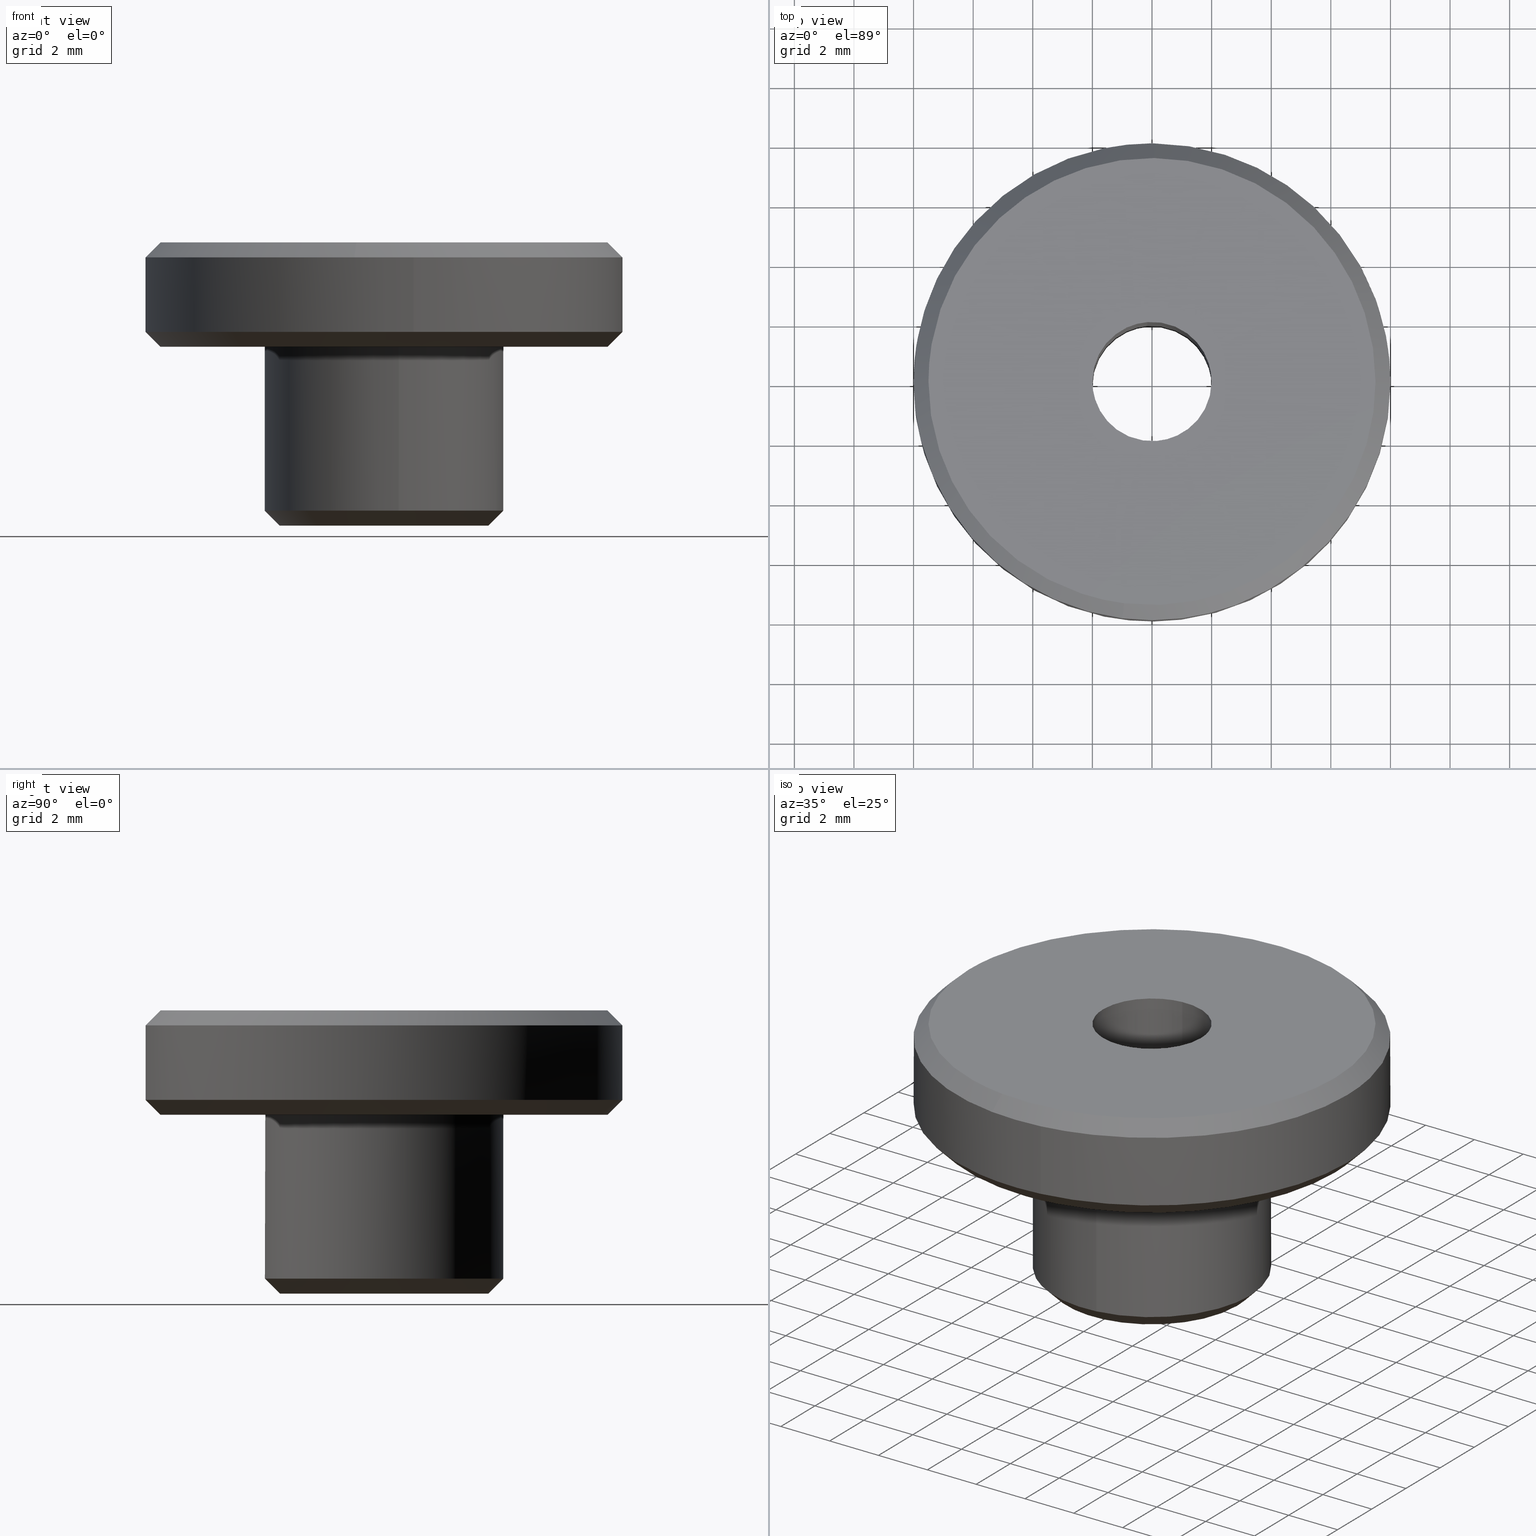
[diagram: canonical four-view strip — front | top / right | iso, engineering-drawing reading convention]
A machine part, canonical four-view strip (front | top / right | iso — engineering-drawing reading convention). The complete STEP part file that produces these views, byte-faithful:
ISO-10303-21;
HEADER;
/****************************************************************
 * Generated by software with PDE/Lib inside                    *
 * PDElib Version 4.4.1-0003, patched  Thursday August 19 11:58 *
 * International Technegroup Inc. (www.iti-oh.com)              *
 ****************************************************************/
FILE_DESCRIPTION((''),'2;1');
FILE_NAME('','2005-07-15T10:44:03',(''),(''),'','CADfix','');
FILE_SCHEMA(('AUTOMOTIVE_DESIGN'));
ENDSEC;
DATA;
#5=APPLICATION_CONTEXT('automotive design');
#6=APPLICATION_PROTOCOL_DEFINITION('Draft International Standard','automotive_design',1998,#5);
#7=PRODUCT_CONTEXT('None',#5,'mechanical');
#8=PRODUCT('knob','','None',(#7));
#9=PRODUCT_RELATED_PRODUCT_CATEGORY('part','description',(#8));
#10=PRODUCT_DEFINITION_FORMATION('None','None',#8);
#11=PRODUCT_DEFINITION_CONTEXT('part definition',#5,'design');
#12=PRODUCT_DEFINITION('None','None',#10,#11);
#18=(NAMED_UNIT(*)PLANE_ANGLE_UNIT()SI_UNIT($,.RADIAN.));
#19=DIMENSIONAL_EXPONENTS(0.0,0.0,0.0,0.0,0.0,0.0,0.0);
#20=PLANE_ANGLE_MEASURE_WITH_UNIT(PLANE_ANGLE_MEASURE(0.017453292500000),#18);
#24=(CONVERSION_BASED_UNIT('DEGREE',#20)NAMED_UNIT(#19)PLANE_ANGLE_UNIT());
#28=(NAMED_UNIT(*)SI_UNIT($,.STERADIAN.)SOLID_ANGLE_UNIT());
#32=(LENGTH_UNIT()NAMED_UNIT(*)SI_UNIT(.MILLI.,.METRE.));
#34=UNCERTAINTY_MEASURE_WITH_UNIT(LENGTH_MEASURE(0.001000000000000),#32,'DISTANCE_ACCURACY_VALUE','');
#36=(GEOMETRIC_REPRESENTATION_CONTEXT(3)GLOBAL_UNCERTAINTY_ASSIGNED_CONTEXT((#34))GLOBAL_UNIT_ASSIGNED_CONTEXT((#24,#28,#32))REPRESENTATION_CONTEXT('None','None'));
#37=AXIS2_PLACEMENT_3D('',#38,#39,#40);
#38=CARTESIAN_POINT('',(0.0,0.0,0.0));
#39=DIRECTION('',(0.0,0.0,1.0));
#40=DIRECTION('',(1.0,0.0,0.0));
#41=ADVANCED_BREP_SHAPE_REPRESENTATION('',(#37,#1111),#36);
#42=PRODUCT_DEFINITION_SHAPE('','',#12);
#43=SHAPE_DEFINITION_REPRESENTATION(#42,#41);
#44=CARTESIAN_POINT('',(-0.929408415572725,-7.429593276018661,9.512500000000001));
#45=CARTESIAN_POINT('',(-7.545399568387005,-6.601962795272439,9.512500000000001));
#46=CARTESIAN_POINT('',(-7.487214898942932,0.065339934544074,9.512500000000001));
#47=CARTESIAN_POINT('',(-7.421874964398858,7.552554833486994,9.512500000000001));
#48=CARTESIAN_POINT('',(0.065339934544063,7.487214898942921,9.512500000000001));
#49=CARTESIAN_POINT('',(-0.994614406665293,-7.950843121468951,8.987187499999997));
#50=CARTESIAN_POINT('',(-8.074774220910383,-7.065147246810602,8.987187499999997));
#51=CARTESIAN_POINT('',(-8.012507396652641,0.069924092723064,8.987187499999997));
#52=CARTESIAN_POINT('',(-7.942583303929577,8.082431489375693,8.987187499999997));
#53=CARTESIAN_POINT('',(0.069924092723053,8.012507396652630,8.987187499999997));
#61=(BOUNDED_SURFACE()B_SPLINE_SURFACE(2,1,((#44,#49),(#45,#50),(#46,#51),(#47,#52),(#48,#53)),.UNSPECIFIED.,.F.,.F.,.U.)B_SPLINE_SURFACE_WITH_KNOTS((3,2,3),(2,2),(0.0,12.213977445729810,25.490039886740469),(0.0,1.0),.UNSPECIFIED.)GEOMETRIC_REPRESENTATION_ITEM()RATIONAL_B_SPLINE_SURFACE(((0.956886118190660,0.956886118190660),(0.730538238691624,0.730538238691624),(1.0,1.0),(0.707106781186548,0.707106781186548),(1.0,1.0)))REPRESENTATION_ITEM('')SURFACE());
#62=CARTESIAN_POINT('',(-0.993024016639548,-7.938129710604311,8.999999999999886));
#63=VERTEX_POINT('',#62);
#64=CARTESIAN_POINT('',(-8.000000000000011,0.0,9.0));
#65=VERTEX_POINT('',#64);
#66=CARTESIAN_POINT('',(-0.993024016639548,-7.938129710604311,8.999999999999886));
#67=CARTESIAN_POINT('',(-8.000000000000011,-7.061588801200236,9.0));
#68=CARTESIAN_POINT('',(-8.000000000000011,0.0,9.0));
#76=(BOUNDED_CURVE()B_SPLINE_CURVE(2,(#66,#67,#68),.UNSPECIFIED.,.F.,.U.)B_SPLINE_CURVE_WITH_KNOTS((3,3),(0.771473928970739,1.0),.UNSPECIFIED.)CURVE()GEOMETRIC_REPRESENTATION_ITEM()RATIONAL_B_SPLINE_CURVE((0.954005430274645,0.732265053893792,1.0))REPRESENTATION_ITEM(''));
#77=EDGE_CURVE('',#63,#65,#76,.T.);
#78=ORIENTED_EDGE('',*,*,#77,.F.);
#79=CARTESIAN_POINT('',(-0.930960015612381,-7.441996603691548,9.499999999998270));
#80=VERTEX_POINT('',#79);
#81=CARTESIAN_POINT('',(-0.930960015612381,-7.441996603691548,9.499999999998270));
#82=CARTESIAN_POINT('',(-0.993024016639548,-7.938129710604311,8.999999999999886));
#83=QUASI_UNIFORM_CURVE('',1,(#81,#82),.UNSPECIFIED.,.F.,.U.);
#84=EDGE_CURVE('',#80,#63,#83,.T.);
#85=ORIENTED_EDGE('',*,*,#84,.F.);
#86=CARTESIAN_POINT('',(-7.500000000000010,0.0,9.500000000000000));
#87=VERTEX_POINT('',#86);
#88=CARTESIAN_POINT('',(-7.500000000000010,0.0,9.500000000000000));
#89=CARTESIAN_POINT('',(-7.500000000000008,-6.620239501102615,9.499999999999998));
#90=CARTESIAN_POINT('',(-0.930960015612380,-7.441996603691548,9.499999999998270));
#98=(BOUNDED_CURVE()B_SPLINE_CURVE(2,(#88,#89,#90),.UNSPECIFIED.,.F.,.U.)B_SPLINE_CURVE_WITH_KNOTS((3,3),(0.500000000000000,0.728526071028690),.UNSPECIFIED.)CURVE()GEOMETRIC_REPRESENTATION_ITEM()RATIONAL_B_SPLINE_CURVE((1.0,0.732265053894462,0.954005430273536))REPRESENTATION_ITEM(''));
#99=EDGE_CURVE('',#87,#80,#98,.T.);
#100=ORIENTED_EDGE('',*,*,#99,.F.);
#101=CARTESIAN_POINT('',(0.065449016252098,7.499714422983092,9.499999999998039));
#102=VERTEX_POINT('',#101);
#103=CARTESIAN_POINT('',(0.065449016252098,7.499714422983092,9.499999999998039));
#104=CARTESIAN_POINT('',(0.032725131169539,7.500000000000001,9.500000000000000));
#105=CARTESIAN_POINT('',(-1.065814E-014,7.500000000000000,9.500000000000000));
#106=CARTESIAN_POINT('',(-7.500000000000009,7.500000000000000,9.500000000000000));
#107=CARTESIAN_POINT('',(-7.500000000000010,0.0,9.500000000000000));
#115=(BOUNDED_CURVE()B_SPLINE_CURVE(2,(#103,#104,#105,#106,#107),.UNSPECIFIED.,.F.,.U.)B_SPLINE_CURVE_WITH_KNOTS((3,2,3),(0.248460105664342,0.250000000000000,0.500000000000000),.UNSPECIFIED.)CURVE()GEOMETRIC_REPRESENTATION_ITEM()RATIONAL_B_SPLINE_CURVE((0.996414028098853,0.998195901565586,1.0,0.707106781186547,1.0))REPRESENTATION_ITEM(''));
#116=EDGE_CURVE('',#102,#87,#115,.T.);
#117=ORIENTED_EDGE('',*,*,#116,.F.);
#118=CARTESIAN_POINT('',(0.069812284010404,7.999695384516350,8.999999999996813));
#119=VERTEX_POINT('',#118);
#120=CARTESIAN_POINT('',(0.065449016252098,7.499714422983092,9.499999999998039));
#121=CARTESIAN_POINT('',(0.069812284010404,7.999695384516350,8.999999999996813));
#122=QUASI_UNIFORM_CURVE('',1,(#120,#121),.UNSPECIFIED.,.F.,.U.);
#123=EDGE_CURVE('',#102,#119,#122,.T.);
#124=ORIENTED_EDGE('',*,*,#123,.T.);
#125=CARTESIAN_POINT('',(-0.069807241200332,7.999695428517923,9.000000000000023));
#126=VERTEX_POINT('',#125);
#127=CARTESIAN_POINT('',(-0.069807241200332,7.999695428517923,9.000000000000023));
#128=CARTESIAN_POINT('',(-0.034904285028288,8.0,9.0));
#129=CARTESIAN_POINT('',(-1.065814E-014,8.0,9.0));
#130=CARTESIAN_POINT('',(0.034906806589004,8.0,8.999999999999998));
#131=CARTESIAN_POINT('',(0.069812284010404,7.999695384516350,8.999999999996813));
#139=(BOUNDED_CURVE()B_SPLINE_CURVE(2,(#127,#128,#129,#130,#131),.UNSPECIFIED.,.F.,.U.)B_SPLINE_CURVE_WITH_KNOTS((3,2,3),(0.248460216700562,0.250000000000000,0.251539894336018),.UNSPECIFIED.)CURVE()GEOMETRIC_REPRESENTATION_ITEM()RATIONAL_B_SPLINE_CURVE((0.996414285067891,0.998196031652609,1.0,0.998195901565165,0.996414028098021))REPRESENTATION_ITEM(''));
#140=EDGE_CURVE('',#126,#119,#139,.T.);
#141=ORIENTED_EDGE('',*,*,#140,.F.);
#142=CARTESIAN_POINT('',(-8.000000000000011,0.0,9.0));
#143=CARTESIAN_POINT('',(-8.000000000000011,7.930494684113032,9.0));
#144=CARTESIAN_POINT('',(-0.069807241200332,7.999695428517923,9.000000000000023));
#152=(BOUNDED_CURVE()B_SPLINE_CURVE(2,(#142,#143,#144),.UNSPECIFIED.,.F.,.U.)B_SPLINE_CURVE_WITH_KNOTS((3,3),(0.0,0.248460216700562),.UNSPECIFIED.)CURVE()GEOMETRIC_REPRESENTATION_ITEM()RATIONAL_B_SPLINE_CURVE((1.0,0.708910749533938,0.996414285067891))REPRESENTATION_ITEM(''));
#153=EDGE_CURVE('',#65,#126,#152,.T.);
#154=ORIENTED_EDGE('',*,*,#153,.F.);
#155=EDGE_LOOP('',(#78,#85,#100,#117,#124,#141,#154));
#156=FACE_OUTER_BOUND('',#155,.T.);
#157=ADVANCED_FACE('',(#156),#61,.T.);
#158=CARTESIAN_POINT('',(0.065339934544063,7.487214898942921,9.512500000000001));
#159=CARTESIAN_POINT('',(7.552554833486984,7.421874964398847,9.512500000000001));
#160=CARTESIAN_POINT('',(7.487214898942910,-0.065339934544074,9.512500000000001));
#161=CARTESIAN_POINT('',(7.421874964398836,-7.552554833486994,9.512500000000001));
#162=CARTESIAN_POINT('',(-0.065339934544085,-7.487214898942921,9.512500000000001));
#163=CARTESIAN_POINT('',(-0.499043065199332,-7.483430029061254,9.512500000000001));
#164=CARTESIAN_POINT('',(-0.929408415572725,-7.429593276018661,9.512500000000001));
#165=CARTESIAN_POINT('',(0.069924092723053,8.012507396652630,8.987187499999997));
#166=CARTESIAN_POINT('',(8.082431489375683,7.942583303929566,8.987187499999997));
#167=CARTESIAN_POINT('',(8.012507396652620,-0.069924092723064,8.987187499999997));
#168=CARTESIAN_POINT('',(7.942583303929555,-8.082431489375693,8.987187499999997));
#169=CARTESIAN_POINT('',(-0.069924092723075,-8.012507396652630,8.987187499999997));
#170=CARTESIAN_POINT('',(-0.534055226827051,-8.008456985607730,8.987187499999997));
#171=CARTESIAN_POINT('',(-0.994614406665293,-7.950843121468951,8.987187499999997));
#179=(BOUNDED_SURFACE()B_SPLINE_SURFACE(2,1,((#158,#165),(#159,#166),(#160,#167),(#161,#168),(#162,#169),(#163,#170),(#164,#171)),.UNSPECIFIED.,.F.,.F.,.U.)B_SPLINE_SURFACE_WITH_KNOTS((3,2,2,3),(2,2),(0.0,13.276062441010660,26.552124882021321,27.614209877302180),(0.0,1.0),.UNSPECIFIED.)GEOMETRIC_REPRESENTATION_ITEM()RATIONAL_B_SPLINE_SURFACE(((1.0,1.0),(0.707106781186548,0.707106781186548),(1.0,1.0),(0.707106781186548,0.707106781186548),(1.0,1.0),(0.976568542494924,0.976568542494924),(0.956886118190660,0.956886118190660)))REPRESENTATION_ITEM('')SURFACE());
#180=CARTESIAN_POINT('',(0.993019944666486,-7.938130219987430,8.999999999999979));
#181=VERTEX_POINT('',#180);
#182=CARTESIAN_POINT('',(0.993019944666486,-7.938130219987430,8.999999999999979));
#183=CARTESIAN_POINT('',(0.498437360448333,-8.0,9.0));
#184=CARTESIAN_POINT('',(-1.065814E-014,-8.0,9.0));
#185=CARTESIAN_POINT('',(-0.498439420268864,-8.000000000000002,9.000000000000002));
#186=CARTESIAN_POINT('',(-0.993024016639548,-7.938129710604311,8.999999999999886));
#194=(BOUNDED_CURVE()B_SPLINE_CURVE(2,(#182,#183,#184,#185,#186),.UNSPECIFIED.,.F.,.U.)B_SPLINE_CURVE_WITH_KNOTS((3,2,3),(0.728526157538534,0.750000000000000,0.771473928970739),.UNSPECIFIED.)CURVE()GEOMETRIC_REPRESENTATION_ITEM()RATIONAL_B_SPLINE_CURVE((0.954005598155769,0.974841828644673,1.0,0.974841727292755,0.954005430274645))REPRESENTATION_ITEM(''));
#195=EDGE_CURVE('',#181,#63,#194,.T.);
#196=ORIENTED_EDGE('',*,*,#195,.F.);
#197=CARTESIAN_POINT('',(7.999999999999989,0.0,9.0));
#198=VERTEX_POINT('',#197);
#199=CARTESIAN_POINT('',(7.999999999999989,0.0,9.0));
#200=CARTESIAN_POINT('',(7.999999999999989,-7.061592451773655,8.999999999999998));
#201=CARTESIAN_POINT('',(0.993019944666486,-7.938130219987430,8.999999999999979));
#209=(BOUNDED_CURVE()B_SPLINE_CURVE(2,(#199,#200,#201),.UNSPECIFIED.,.F.,.U.)B_SPLINE_CURVE_WITH_KNOTS((3,3),(0.500000000000000,0.728526157538534),.UNSPECIFIED.)CURVE()GEOMETRIC_REPRESENTATION_ITEM()RATIONAL_B_SPLINE_CURVE((1.0,0.732264952541874,0.954005598155769))REPRESENTATION_ITEM(''));
#210=EDGE_CURVE('',#198,#181,#209,.T.);
#211=ORIENTED_EDGE('',*,*,#210,.F.);
#212=CARTESIAN_POINT('',(0.069812284010404,7.999695384516350,8.999999999996813));
#213=CARTESIAN_POINT('',(7.999999999999990,7.930489684713439,9.0));
#214=CARTESIAN_POINT('',(7.999999999999989,0.0,9.0));
#222=(BOUNDED_CURVE()B_SPLINE_CURVE(2,(#212,#213,#214),.UNSPECIFIED.,.F.,.U.)B_SPLINE_CURVE_WITH_KNOTS((3,3),(0.251539894336017,0.500000000000000),.UNSPECIFIED.)CURVE()GEOMETRIC_REPRESENTATION_ITEM()RATIONAL_B_SPLINE_CURVE((0.996414028098022,0.708910879621383,1.0))REPRESENTATION_ITEM(''));
#223=EDGE_CURVE('',#119,#198,#222,.T.);
#224=ORIENTED_EDGE('',*,*,#223,.F.);
#225=ORIENTED_EDGE('',*,*,#123,.F.);
#226=CARTESIAN_POINT('',(7.499999999999989,0.0,9.500000000000000));
#227=VERTEX_POINT('',#226);
#228=CARTESIAN_POINT('',(7.499999999999989,0.0,9.500000000000000));
#229=CARTESIAN_POINT('',(7.499999999999988,7.434834079434003,9.500000000000000));
#230=CARTESIAN_POINT('',(0.065449016252098,7.499714422983092,9.499999999998039));
#238=(BOUNDED_CURVE()B_SPLINE_CURVE(2,(#228,#229,#230),.UNSPECIFIED.,.F.,.U.)B_SPLINE_CURVE_WITH_KNOTS((3,3),(0.0,0.248460105664342),.UNSPECIFIED.)CURVE()GEOMETRIC_REPRESENTATION_ITEM()RATIONAL_B_SPLINE_CURVE((1.0,0.708910879620962,0.996414028098852))REPRESENTATION_ITEM(''));
#239=EDGE_CURVE('',#227,#102,#238,.T.);
#240=ORIENTED_EDGE('',*,*,#239,.F.);
#241=CARTESIAN_POINT('',(-0.930960015612381,-7.441996603691548,9.499999999998270));
#242=CARTESIAN_POINT('',(-0.467286956514814,-7.500000000000000,9.500000000000000));
#243=CARTESIAN_POINT('',(-1.065814E-014,-7.500000000000000,9.500000000000000));
#244=CARTESIAN_POINT('',(7.499999999999989,-7.500000000000000,9.500000000000000));
#245=CARTESIAN_POINT('',(7.499999999999989,0.0,9.500000000000000));
#253=(BOUNDED_CURVE()B_SPLINE_CURVE(2,(#241,#242,#243,#244,#245),.UNSPECIFIED.,.F.,.U.)B_SPLINE_CURVE_WITH_KNOTS((3,2,3),(0.728526071028690,0.750000000000000,1.0),.UNSPECIFIED.)CURVE()GEOMETRIC_REPRESENTATION_ITEM()RATIONAL_B_SPLINE_CURVE((0.954005430273537,0.974841727292086,1.0,0.707106781186547,1.0))REPRESENTATION_ITEM(''));
#254=EDGE_CURVE('',#80,#227,#253,.T.);
#255=ORIENTED_EDGE('',*,*,#254,.F.);
#256=ORIENTED_EDGE('',*,*,#84,.T.);
#257=EDGE_LOOP('',(#196,#211,#224,#225,#240,#255,#256));
#258=FACE_OUTER_BOUND('',#257,.T.);
#259=ADVANCED_FACE('',(#258),#179,.T.);
#260=CARTESIAN_POINT('',(6.131260018922354,-4.297709486501394,5.987500000000000));
#261=CARTESIAN_POINT('',(7.508148326900433,-2.333393317680959,5.987500000000001));
#262=CARTESIAN_POINT('',(7.487214898942968,0.065339934544075,5.987499999999999));
#263=CARTESIAN_POINT('',(7.421874964398892,7.552554833487053,5.987500000000000));
#264=CARTESIAN_POINT('',(-0.065339934544085,7.487214898942979,5.987499999999999));
#265=CARTESIAN_POINT('',(-7.552554833487065,7.421874964398904,5.987500000000000));
#266=CARTESIAN_POINT('',(-7.487214898942989,-0.065339934544075,5.987499999999999));
#267=CARTESIAN_POINT('',(-7.421874964398914,-7.552554833487053,5.987500000000000));
#268=CARTESIAN_POINT('',(0.065339934544064,-7.487214898942979,5.987499999999999));
#269=CARTESIAN_POINT('',(6.561420623755812,-4.599230757236356,6.512812500000001));
#270=CARTESIAN_POINT('',(8.034909484559911,-2.497100920645155,6.512812500000001));
#271=CARTESIAN_POINT('',(8.012507396652675,0.069924092723065,6.512812500000001));
#272=CARTESIAN_POINT('',(7.942583303929611,8.082431489375750,6.512812500000001));
#273=CARTESIAN_POINT('',(-0.069924092723075,8.012507396652685,6.512812500000001));
#274=CARTESIAN_POINT('',(-8.082431489375761,7.942583303929622,6.512812500000001));
#275=CARTESIAN_POINT('',(-8.012507396652696,-0.069924092723065,6.512812500000001));
#276=CARTESIAN_POINT('',(-7.942583303929633,-8.082431489375750,6.512812500000001));
#277=CARTESIAN_POINT('',(0.069924092723054,-8.012507396652685,6.512812500000001));
#285=(BOUNDED_SURFACE()B_SPLINE_SURFACE(2,1,((#260,#269),(#261,#270),(#262,#271),(#263,#272),(#264,#273),(#265,#274),(#266,#275),(#267,#276),(#268,#277)),.UNSPECIFIED.,.F.,.F.,.U.)B_SPLINE_SURFACE_WITH_KNOTS((3,2,2,2,3),(2,2),(0.0,5.310424976404302,18.586487417415050,31.862549858425808,45.138612299436559),(0.0,1.0),.UNSPECIFIED.)GEOMETRIC_REPRESENTATION_ITEM()RATIONAL_B_SPLINE_SURFACE(((0.859411254969543,0.859411254969543),(0.882842712474619,0.882842712474619),(1.0,1.0),(0.707106781186548,0.707106781186548),(1.0,1.0),(0.707106781186548,0.707106781186548),(1.0,1.0),(0.707106781186548,0.707106781186548),(1.0,1.0)))REPRESENTATION_ITEM('')SURFACE());
#286=CARTESIAN_POINT('',(7.499999999999989,0.0,6.0));
#287=VERTEX_POINT('',#286);
#288=CARTESIAN_POINT('',(6.141495845331225,-4.304884293657517,6.000000000000002));
#289=VERTEX_POINT('',#288);
#290=CARTESIAN_POINT('',(7.499999999999989,0.0,6.0));
#291=CARTESIAN_POINT('',(7.499999999999989,-2.366795589611353,5.999999999999999));
#292=CARTESIAN_POINT('',(6.141495845331225,-4.304884293657517,6.000000000000001));
#300=(BOUNDED_CURVE()B_SPLINE_CURVE(2,(#290,#291,#292),.UNSPECIFIED.,.F.,.U.)B_SPLINE_CURVE_WITH_KNOTS((3,3),(0.0,0.098673726202873),.UNSPECIFIED.)CURVE()GEOMETRIC_REPRESENTATION_ITEM()RATIONAL_B_SPLINE_CURVE((1.0,0.884396538880492,0.860049271925871))REPRESENTATION_ITEM(''));
#301=EDGE_CURVE('',#287,#289,#300,.T.);
#302=ORIENTED_EDGE('',*,*,#301,.F.);
#303=CARTESIAN_POINT('',(-7.500000000000010,0.0,6.0));
#304=VERTEX_POINT('',#303);
#305=CARTESIAN_POINT('',(-7.500000000000010,0.0,6.0));
#306=CARTESIAN_POINT('',(-7.500000000000009,7.500000000000000,6.0));
#307=CARTESIAN_POINT('',(-1.065814E-014,7.500000000000000,6.0));
#308=CARTESIAN_POINT('',(7.499999999999989,7.500000000000000,6.0));
#309=CARTESIAN_POINT('',(7.499999999999989,0.0,6.0));
#317=(BOUNDED_CURVE()B_SPLINE_CURVE(2,(#305,#306,#307,#308,#309),.UNSPECIFIED.,.F.,.U.)B_SPLINE_CURVE_WITH_KNOTS((3,2,3),(0.500000000000000,0.750000000000000,1.0),.UNSPECIFIED.)CURVE()GEOMETRIC_REPRESENTATION_ITEM()RATIONAL_B_SPLINE_CURVE((1.0,0.707106781186547,1.0,0.707106781186547,1.0))REPRESENTATION_ITEM(''));
#318=EDGE_CURVE('',#304,#287,#317,.T.);
#319=ORIENTED_EDGE('',*,*,#318,.F.);
#320=CARTESIAN_POINT('',(0.065449016252097,-7.499714422983107,6.000000000001948));
#321=VERTEX_POINT('',#320);
#322=CARTESIAN_POINT('',(0.065449016252097,-7.499714422983107,6.000000000001948));
#323=CARTESIAN_POINT('',(0.032725131169539,-7.500000000000001,6.0));
#324=CARTESIAN_POINT('',(-1.065814E-014,-7.500000000000000,6.0));
#325=CARTESIAN_POINT('',(-7.500000000000009,-7.500000000000000,6.0));
#326=CARTESIAN_POINT('',(-7.500000000000010,0.0,6.0));
#334=(BOUNDED_CURVE()B_SPLINE_CURVE(2,(#322,#323,#324,#325,#326),.UNSPECIFIED.,.F.,.U.)B_SPLINE_CURVE_WITH_KNOTS((3,2,3),(0.248460105664342,0.250000000000000,0.500000000000000),.UNSPECIFIED.)CURVE()GEOMETRIC_REPRESENTATION_ITEM()RATIONAL_B_SPLINE_CURVE((0.996414028098853,0.998195901565586,1.0,0.707106781186547,1.0))REPRESENTATION_ITEM(''));
#335=EDGE_CURVE('',#321,#304,#334,.T.);
#336=ORIENTED_EDGE('',*,*,#335,.F.);
#337=CARTESIAN_POINT('',(0.069812283987217,-7.999695384513414,6.500000000000019));
#338=VERTEX_POINT('',#337);
#339=CARTESIAN_POINT('',(0.065449016252097,-7.499714422983107,6.000000000001948));
#340=CARTESIAN_POINT('',(0.069812283987217,-7.999695384513414,6.500000000000019));
#341=QUASI_UNIFORM_CURVE('',1,(#339,#340),.UNSPECIFIED.,.F.,.U.);
#342=EDGE_CURVE('',#321,#338,#341,.T.);
#343=ORIENTED_EDGE('',*,*,#342,.T.);
#344=CARTESIAN_POINT('',(-8.000000000000011,0.0,6.500000000000000));
#345=VERTEX_POINT('',#344);
#346=CARTESIAN_POINT('',(-8.000000000000011,0.0,6.500000000000000));
#347=CARTESIAN_POINT('',(-8.000000000000011,-8.0,6.500000000000001));
#348=CARTESIAN_POINT('',(-1.065814E-014,-8.0,6.500000000000000));
#349=CARTESIAN_POINT('',(0.034906806565840,-8.0,6.500000000000001));
#350=CARTESIAN_POINT('',(0.069812283987217,-7.999695384513414,6.500000000000019));
#358=(BOUNDED_CURVE()B_SPLINE_CURVE(2,(#346,#347,#348,#349,#350),.UNSPECIFIED.,.F.,.U.)B_SPLINE_CURVE_WITH_KNOTS((3,2,3),(0.0,0.250000000000000,0.251539894334998),.UNSPECIFIED.)CURVE()GEOMETRIC_REPRESENTATION_ITEM()RATIONAL_B_SPLINE_CURVE((1.0,0.707106781186548,1.0,0.998195901566360,0.996414028100381))REPRESENTATION_ITEM(''));
#359=EDGE_CURVE('',#345,#338,#358,.T.);
#360=ORIENTED_EDGE('',*,*,#359,.F.);
#361=CARTESIAN_POINT('',(-0.069806827217457,7.999695432130153,6.500000000000000));
#362=VERTEX_POINT('',#361);
#363=CARTESIAN_POINT('',(-0.069806827217457,7.999695432130153,6.500000000000000));
#364=CARTESIAN_POINT('',(-8.000000000000011,7.930495094530415,6.500000000000002));
#365=CARTESIAN_POINT('',(-8.000000000000011,0.0,6.500000000000000));
#373=(BOUNDED_CURVE()B_SPLINE_CURVE(2,(#363,#364,#365),.UNSPECIFIED.,.F.,.U.)B_SPLINE_CURVE_WITH_KNOTS((3,3),(0.751539774184077,1.0),.UNSPECIFIED.)CURVE()GEOMETRIC_REPRESENTATION_ITEM()RATIONAL_B_SPLINE_CURVE((0.996414306163410,0.708910738854628,1.0))REPRESENTATION_ITEM(''));
#374=EDGE_CURVE('',#362,#345,#373,.T.);
#375=ORIENTED_EDGE('',*,*,#374,.F.);
#376=CARTESIAN_POINT('',(7.999999999999989,0.0,6.500000000000000));
#377=VERTEX_POINT('',#376);
#378=CARTESIAN_POINT('',(7.999999999999989,0.0,6.500000000000000));
#379=CARTESIAN_POINT('',(7.999999999999991,8.0,6.500000000000001));
#380=CARTESIAN_POINT('',(-1.065814E-014,8.0,6.500000000000000));
#381=CARTESIAN_POINT('',(-0.034904078025030,8.0,6.500000000000000));
#382=CARTESIAN_POINT('',(-0.069806827217457,7.999695432130153,6.500000000000000));
#390=(BOUNDED_CURVE()B_SPLINE_CURVE(2,(#378,#379,#380,#381,#382),.UNSPECIFIED.,.F.,.U.)B_SPLINE_CURVE_WITH_KNOTS((3,2,3),(0.500000000000000,0.750000000000000,0.751539774184077),.UNSPECIFIED.)CURVE()GEOMETRIC_REPRESENTATION_ITEM()RATIONAL_B_SPLINE_CURVE((1.0,0.707106781186548,1.0,0.998196042331919,0.996414306163410))REPRESENTATION_ITEM(''));
#391=EDGE_CURVE('',#377,#362,#390,.T.);
#392=ORIENTED_EDGE('',*,*,#391,.F.);
#393=CARTESIAN_POINT('',(6.550928901686220,-4.591876579902039,6.500000000000023));
#394=VERTEX_POINT('',#393);
#395=CARTESIAN_POINT('',(6.550928901686220,-4.591876579902039,6.500000000000023));
#396=CARTESIAN_POINT('',(7.999999999999989,-2.524581962252997,6.500000000000000));
#397=CARTESIAN_POINT('',(7.999999999999989,0.0,6.500000000000000));
#405=(BOUNDED_CURVE()B_SPLINE_CURVE(2,(#395,#396,#397),.UNSPECIFIED.,.F.,.U.)B_SPLINE_CURVE_WITH_KNOTS((3,3),(0.401326273797096,0.500000000000000),.UNSPECIFIED.)CURVE()GEOMETRIC_REPRESENTATION_ITEM()RATIONAL_B_SPLINE_CURVE((0.860049271925856,0.884396538880457,1.0))REPRESENTATION_ITEM(''));
#406=EDGE_CURVE('',#394,#377,#405,.T.);
#407=ORIENTED_EDGE('',*,*,#406,.F.);
#408=CARTESIAN_POINT('',(6.141495845331225,-4.304884293657517,6.000000000000002));
#409=CARTESIAN_POINT('',(6.550928901686220,-4.591876579902039,6.500000000000023));
#410=QUASI_UNIFORM_CURVE('',1,(#408,#409),.UNSPECIFIED.,.F.,.U.);
#411=EDGE_CURVE('',#289,#394,#410,.T.);
#412=ORIENTED_EDGE('',*,*,#411,.F.);
#413=EDGE_LOOP('',(#302,#319,#336,#343,#360,#375,#392,#407,#412));
#414=FACE_OUTER_BOUND('',#413,.T.);
#415=ADVANCED_FACE('',(#414),#285,.T.);
#416=CARTESIAN_POINT('',(0.065339934544064,-7.487214898942979,5.987499999999999));
#417=CARTESIAN_POINT('',(3.919148898108496,-7.453583217627111,5.987499999999999));
#418=CARTESIAN_POINT('',(6.131260018922354,-4.297709486501394,5.987500000000000));
#419=CARTESIAN_POINT('',(0.069924092723054,-8.012507396652685,6.512812500000001));
#420=CARTESIAN_POINT('',(4.194110888831415,-7.976516163738657,6.512812500000002));
#421=CARTESIAN_POINT('',(6.561420623755812,-4.599230757236356,6.512812500000001));
#429=(BOUNDED_SURFACE()B_SPLINE_SURFACE(2,1,((#416,#419),(#417,#420),(#418,#421)),.UNSPECIFIED.,.F.,.F.,.U.)B_SPLINE_SURFACE_WITH_KNOTS((3,3),(2,2),(0.0,7.911342592776035),(0.0,1.0),.UNSPECIFIED.)GEOMETRIC_REPRESENTATION_ITEM()RATIONAL_B_SPLINE_SURFACE(((1.0,1.0),(0.824264068711928,0.824264068711928),(0.859411254969543,0.859411254969543)))REPRESENTATION_ITEM('')SURFACE());
#430=CARTESIAN_POINT('',(6.141495845331225,-4.304884293657517,6.000000000000002));
#431=CARTESIAN_POINT('',(3.925691717648229,-7.466026595271128,6.000000000000001));
#432=CARTESIAN_POINT('',(0.065449016252097,-7.499714422983107,6.000000000001948));
#440=(BOUNDED_CURVE()B_SPLINE_CURVE(2,(#430,#431,#432),.UNSPECIFIED.,.F.,.U.)B_SPLINE_CURVE_WITH_KNOTS((3,3),(0.098673726202873,0.248460105664342),.UNSPECIFIED.)CURVE()GEOMETRIC_REPRESENTATION_ITEM()RATIONAL_B_SPLINE_CURVE((0.860049271925871,0.823090203820786,0.996414028098853))REPRESENTATION_ITEM(''));
#441=EDGE_CURVE('',#289,#321,#440,.T.);
#442=ORIENTED_EDGE('',*,*,#441,.F.);
#443=ORIENTED_EDGE('',*,*,#411,.T.);
#444=CARTESIAN_POINT('',(0.993020157126018,-7.938130193409922,6.500000000000000));
#445=VERTEX_POINT('',#444);
#446=CARTESIAN_POINT('',(0.993020157126018,-7.938130193409922,6.500000000000000));
#447=CARTESIAN_POINT('',(4.514119867253672,-7.497658331370856,6.500000000000000));
#448=CARTESIAN_POINT('',(6.550928901686220,-4.591876579902039,6.500000000000023));
#456=(BOUNDED_CURVE()B_SPLINE_CURVE(2,(#446,#447,#448),.UNSPECIFIED.,.F.,.U.)B_SPLINE_CURVE_WITH_KNOTS((3,3),(0.271473846975178,0.401326273797096),.UNSPECIFIED.)CURVE()GEOMETRIC_REPRESENTATION_ITEM()RATIONAL_B_SPLINE_CURVE((0.954005589396391,0.828008810678505,0.860049271925856))REPRESENTATION_ITEM(''));
#457=EDGE_CURVE('',#445,#394,#456,.T.);
#458=ORIENTED_EDGE('',*,*,#457,.F.);
#459=CARTESIAN_POINT('',(0.069812283987217,-7.999695384513414,6.500000000000019));
#460=CARTESIAN_POINT('',(0.533199320417539,-7.995651467110463,6.500000000000002));
#461=CARTESIAN_POINT('',(0.993020157126018,-7.938130193409922,6.500000000000001));
#469=(BOUNDED_CURVE()B_SPLINE_CURVE(2,(#459,#460,#461),.UNSPECIFIED.,.F.,.U.)B_SPLINE_CURVE_WITH_KNOTS((3,3),(0.251539894334998,0.271473846975178),.UNSPECIFIED.)CURVE()GEOMETRIC_REPRESENTATION_ITEM()RATIONAL_B_SPLINE_CURVE((0.996414028100382,0.973347652392427,0.954005589396391))REPRESENTATION_ITEM(''));
#470=EDGE_CURVE('',#338,#445,#469,.T.);
#471=ORIENTED_EDGE('',*,*,#470,.F.);
#472=ORIENTED_EDGE('',*,*,#342,.F.);
#473=EDGE_LOOP('',(#442,#443,#458,#471,#472));
#474=FACE_OUTER_BOUND('',#473,.T.);
#475=ADVANCED_FACE('',(#474),#429,.T.);
#476=CARTESIAN_POINT('',(-1.409701319057723,-3.189890035886338,-0.012499999999999));
#477=CARTESIAN_POINT('',(-0.721713350950116,-3.493931095366824,-0.012499999999999));
#478=CARTESIAN_POINT('',(0.030433792550568,-3.487367206686296,-0.012499999999999));
#479=CARTESIAN_POINT('',(3.517800999236865,-3.456933414135717,-0.012499999999999));
#480=CARTESIAN_POINT('',(3.487367206686285,0.030433792550579,-0.012499999999999));
#481=CARTESIAN_POINT('',(3.456933414135706,3.517800999236875,-0.012499999999999));
#482=CARTESIAN_POINT('',(-0.030433792550590,3.487367206686296,-0.012499999999999));
#483=CARTESIAN_POINT('',(-1.622040738173852,-3.670374368352730,0.512812499999944));
#484=CARTESIAN_POINT('',(-0.830423041178353,-4.020212293513027,0.512812499999944));
#485=CARTESIAN_POINT('',(0.035017950729558,-4.012659704395943,0.512812499999944));
#486=CARTESIAN_POINT('',(4.047677655125500,-3.977641753666374,0.512812499999944));
#487=CARTESIAN_POINT('',(4.012659704395932,0.035017950729568,0.512812499999944));
#488=CARTESIAN_POINT('',(3.977641753666364,4.047677655125511,0.512812499999944));
#489=CARTESIAN_POINT('',(-0.035017950729579,4.012659704395943,0.512812499999944));
#497=(BOUNDED_SURFACE()B_SPLINE_SURFACE(2,1,((#476,#483),(#477,#484),(#478,#485),(#479,#486),(#480,#487),(#481,#488),(#482,#489)),.UNSPECIFIED.,.F.,.F.,.U.)B_SPLINE_SURFACE_WITH_KNOTS((3,2,2,3),(2,2),(0.0,1.861620724051520,8.510266167092659,15.158911610133799),(0.0,1.0),.UNSPECIFIED.)GEOMETRIC_REPRESENTATION_ITEM()RATIONAL_B_SPLINE_SURFACE(((0.881905454174416,0.881905454174416),(0.917989898732233,0.917989898732233),(1.0,1.0),(0.707106781186548,0.707106781186548),(1.0,1.0),(0.707106781186548,0.707106781186548),(1.0,1.0)))REPRESENTATION_ITEM('')SURFACE());
#498=CARTESIAN_POINT('',(-1.616861727963373,-3.658655238288483,0.500000000000999));
#499=VERTEX_POINT('',#498);
#500=CARTESIAN_POINT('',(0.496510696364964,-3.969065019421251,0.499999999999956));
#501=VERTEX_POINT('',#500);
#502=CARTESIAN_POINT('',(-1.616861727963373,-3.658655238288482,0.500000000000999));
#503=CARTESIAN_POINT('',(-0.844462469020603,-4.000000000000001,0.499999999999945));
#504=CARTESIAN_POINT('',(-1.065814E-014,-4.0,0.499999999999945));
#505=CARTESIAN_POINT('',(0.249219046477814,-4.000000000000001,0.499999999999945));
#506=CARTESIAN_POINT('',(0.496510696364964,-3.969065019421251,0.499999999999956));
#514=(BOUNDED_CURVE()B_SPLINE_CURVE(2,(#502,#503,#504,#505,#506),.UNSPECIFIED.,.F.,.U.)B_SPLINE_CURVE_WITH_KNOTS((3,2,3),(0.181361578458957,0.250000000000000,0.271473873225641),.UNSPECIFIED.)CURVE()GEOMETRIC_REPRESENTATION_ITEM()RATIONAL_B_SPLINE_CURVE((0.883326595750854,0.919585087122277,1.0,0.974841792602200,0.954005538454358))REPRESENTATION_ITEM(''));
#515=EDGE_CURVE('',#499,#501,#514,.T.);
#516=ORIENTED_EDGE('',*,*,#515,.F.);
#517=CARTESIAN_POINT('',(-1.414754011958162,-3.201323333505799,5.253019E-014));
#518=VERTEX_POINT('',#517);
#519=CARTESIAN_POINT('',(-1.414754011958162,-3.201323333505799,5.253019E-014));
#520=CARTESIAN_POINT('',(-1.616861727963373,-3.658655238288483,0.500000000000999));
#521=QUASI_UNIFORM_CURVE('',1,(#519,#520),.UNSPECIFIED.,.F.,.U.);
#522=EDGE_CURVE('',#518,#499,#521,.T.);
#523=ORIENTED_EDGE('',*,*,#522,.F.);
#524=CARTESIAN_POINT('',(3.499999999999989,0.0,0.0));
#525=VERTEX_POINT('',#524);
#526=CARTESIAN_POINT('',(3.499999999999989,0.0,0.0));
#527=CARTESIAN_POINT('',(3.499999999999990,-3.500000000000000,0.0));
#528=CARTESIAN_POINT('',(-1.065814E-014,-3.500000000000000,0.0));
#529=CARTESIAN_POINT('',(-0.738904660382259,-3.500000000000000,0.0));
#530=CARTESIAN_POINT('',(-1.414754011958162,-3.201323333505799,5.253019E-014));
#538=(BOUNDED_CURVE()B_SPLINE_CURVE(2,(#526,#527,#528,#529,#530),.UNSPECIFIED.,.F.,.U.)B_SPLINE_CURVE_WITH_KNOTS((3,2,3),(0.500000000000000,0.750000000000000,0.818638421540123),.UNSPECIFIED.)CURVE()GEOMETRIC_REPRESENTATION_ITEM()RATIONAL_B_SPLINE_CURVE((1.0,0.707106781186547,1.0,0.919585087123355,0.883326595751826))REPRESENTATION_ITEM(''));
#539=EDGE_CURVE('',#525,#518,#538,.T.);
#540=ORIENTED_EDGE('',*,*,#539,.F.);
#541=CARTESIAN_POINT('',(-0.030542874248583,3.499866730725140,5.782102E-013));
#542=VERTEX_POINT('',#541);
#543=CARTESIAN_POINT('',(-0.030542874248583,3.499866730725140,5.782102E-013));
#544=CARTESIAN_POINT('',(-0.015271727876725,3.500000000000000,0.0));
#545=CARTESIAN_POINT('',(-1.065814E-014,3.500000000000000,0.0));
#546=CARTESIAN_POINT('',(3.499999999999990,3.500000000000000,0.0));
#547=CARTESIAN_POINT('',(3.499999999999989,0.0,0.0));
#555=(BOUNDED_CURVE()B_SPLINE_CURVE(2,(#543,#544,#545,#546,#547),.UNSPECIFIED.,.F.,.U.)B_SPLINE_CURVE_WITH_KNOTS((3,2,3),(0.248460105664584,0.250000000000000,0.500000000000000),.UNSPECIFIED.)CURVE()GEOMETRIC_REPRESENTATION_ITEM()RATIONAL_B_SPLINE_CURVE((0.996414028099414,0.998195901565870,1.0,0.707106781186547,1.0))REPRESENTATION_ITEM(''));
#556=EDGE_CURVE('',#542,#525,#555,.T.);
#557=ORIENTED_EDGE('',*,*,#556,.F.);
#558=CARTESIAN_POINT('',(-0.034904604637149,3.999847705671220,0.499999999999363));
#559=VERTEX_POINT('',#558);
#560=CARTESIAN_POINT('',(-0.030542874248583,3.499866730725140,5.782102E-013));
#561=CARTESIAN_POINT('',(-0.034904604637149,3.999847705671220,0.499999999999363));
#562=QUASI_UNIFORM_CURVE('',1,(#560,#561),.UNSPECIFIED.,.F.,.U.);
#563=EDGE_CURVE('',#542,#559,#562,.T.);
#564=ORIENTED_EDGE('',*,*,#563,.T.);
#565=CARTESIAN_POINT('',(3.999999999999990,0.0,0.499999999999945));
#566=VERTEX_POINT('',#565);
#567=CARTESIAN_POINT('',(3.999999999999990,0.0,0.499999999999945));
#568=CARTESIAN_POINT('',(3.999999999999990,4.000000000000000,0.499999999999945));
#569=CARTESIAN_POINT('',(-1.065814E-014,4.0,0.499999999999945));
#570=CARTESIAN_POINT('',(-0.017452634560741,4.0,0.499999999999945));
#571=CARTESIAN_POINT('',(-0.034904604637149,3.999847705671220,0.499999999999363));
#579=(BOUNDED_CURVE()B_SPLINE_CURVE(2,(#567,#568,#569,#570,#571),.UNSPECIFIED.,.F.,.U.)B_SPLINE_CURVE_WITH_KNOTS((3,2,3),(0.500000000000000,0.750000000000000,0.751539826633849),.UNSPECIFIED.)CURVE()GEOMETRIC_REPRESENTATION_ITEM()RATIONAL_B_SPLINE_CURVE((1.0,0.707106781186548,1.0,0.998195980883189,0.996414184779850))REPRESENTATION_ITEM(''));
#580=EDGE_CURVE('',#566,#559,#579,.T.);
#581=ORIENTED_EDGE('',*,*,#580,.F.);
#582=CARTESIAN_POINT('',(0.496510696364964,-3.969065019421251,0.499999999999956));
#583=CARTESIAN_POINT('',(3.999999999999990,-3.530795576783641,0.499999999999945));
#584=CARTESIAN_POINT('',(3.999999999999990,0.0,0.499999999999945));
#592=(BOUNDED_CURVE()B_SPLINE_CURVE(2,(#582,#583,#584),.UNSPECIFIED.,.F.,.U.)B_SPLINE_CURVE_WITH_KNOTS((3,3),(0.271473873225641,0.500000000000000),.UNSPECIFIED.)CURVE()GEOMETRIC_REPRESENTATION_ITEM()RATIONAL_B_SPLINE_CURVE((0.954005538454358,0.732264988584347,1.0))REPRESENTATION_ITEM(''));
#593=EDGE_CURVE('',#501,#566,#592,.T.);
#594=ORIENTED_EDGE('',*,*,#593,.F.);
#595=EDGE_LOOP('',(#516,#523,#540,#557,#564,#581,#594));
#596=FACE_OUTER_BOUND('',#595,.T.);
#597=ADVANCED_FACE('',(#596),#497,.T.);
#598=CARTESIAN_POINT('',(-0.030433792550590,3.487367206686296,-0.012499999999999));
#599=CARTESIAN_POINT('',(-3.517800999236886,3.456933414135717,-0.012499999999999));
#600=CARTESIAN_POINT('',(-3.487367206686307,-0.030433792550579,-0.012499999999999));
#601=CARTESIAN_POINT('',(-3.467732146368726,-2.280388849549790,-0.012499999999999));
#602=CARTESIAN_POINT('',(-1.409701319057723,-3.189890035886338,-0.012499999999999));
#603=CARTESIAN_POINT('',(-0.035017950729579,4.012659704395943,0.512812499999944));
#604=CARTESIAN_POINT('',(-4.047677655125521,3.977641753666374,0.512812499999944));
#605=CARTESIAN_POINT('',(-4.012659704395953,-0.035017950729568,0.512812499999944));
#606=CARTESIAN_POINT('',(-3.990067069132686,-2.623877528411188,0.512812499999944));
#607=CARTESIAN_POINT('',(-1.622040738173852,-3.670374368352730,0.512812499999944));
#615=(BOUNDED_SURFACE()B_SPLINE_SURFACE(2,1,((#598,#603),(#599,#604),(#600,#605),(#601,#606),(#602,#607)),.UNSPECIFIED.,.F.,.F.,.U.)B_SPLINE_SURFACE_WITH_KNOTS((3,2,3),(2,2),(0.0,6.648645443041140,11.435670162030760),(0.0,1.0),.UNSPECIFIED.)GEOMETRIC_REPRESENTATION_ITEM()RATIONAL_B_SPLINE_SURFACE(((1.0,1.0),(0.707106781186548,0.707106781186548),(1.0,1.0),(0.789116882454314,0.789116882454314),(0.881905454174416,0.881905454174416)))REPRESENTATION_ITEM('')SURFACE());
#616=CARTESIAN_POINT('',(-4.000000000000011,0.0,0.499999999999945));
#617=VERTEX_POINT('',#616);
#618=CARTESIAN_POINT('',(-4.000000000000011,0.0,0.499999999999945));
#619=CARTESIAN_POINT('',(-4.000000000000012,-2.605480010348695,0.499999999999945));
#620=CARTESIAN_POINT('',(-1.616861727963373,-3.658655238288482,0.500000000000999));
#628=(BOUNDED_CURVE()B_SPLINE_CURVE(2,(#618,#619,#620),.UNSPECIFIED.,.F.,.U.)B_SPLINE_CURVE_WITH_KNOTS((3,3),(0.0,0.181361578458957),.UNSPECIFIED.)CURVE()GEOMETRIC_REPRESENTATION_ITEM()RATIONAL_B_SPLINE_CURVE((1.0,0.787521694064270,0.883326595750854))REPRESENTATION_ITEM(''));
#629=EDGE_CURVE('',#617,#499,#628,.T.);
#630=ORIENTED_EDGE('',*,*,#629,.F.);
#631=CARTESIAN_POINT('',(-0.034904604637149,3.999847705671220,0.499999999999363));
#632=CARTESIAN_POINT('',(-4.000000000000011,3.965246366494845,0.499999999999945));
#633=CARTESIAN_POINT('',(-4.000000000000011,0.0,0.499999999999945));
#641=(BOUNDED_CURVE()B_SPLINE_CURVE(2,(#631,#632,#633),.UNSPECIFIED.,.F.,.U.)B_SPLINE_CURVE_WITH_KNOTS((3,3),(0.751539826633849,1.0),.UNSPECIFIED.)CURVE()GEOMETRIC_REPRESENTATION_ITEM()RATIONAL_B_SPLINE_CURVE((0.996414184779850,0.708910800303359,1.0))REPRESENTATION_ITEM(''));
#642=EDGE_CURVE('',#559,#617,#641,.T.);
#643=ORIENTED_EDGE('',*,*,#642,.F.);
#644=ORIENTED_EDGE('',*,*,#563,.F.);
#645=CARTESIAN_POINT('',(-3.500000000000011,0.0,0.0));
#646=VERTEX_POINT('',#645);
#647=CARTESIAN_POINT('',(-3.500000000000011,0.0,0.0));
#648=CARTESIAN_POINT('',(-3.500000000000012,3.469589237073978,0.0));
#649=CARTESIAN_POINT('',(-0.030542874248583,3.499866730725140,5.782102E-013));
#657=(BOUNDED_CURVE()B_SPLINE_CURVE(2,(#647,#648,#649),.UNSPECIFIED.,.F.,.U.)B_SPLINE_CURVE_WITH_KNOTS((3,3),(0.0,0.248460105664584),.UNSPECIFIED.)CURVE()GEOMETRIC_REPRESENTATION_ITEM()RATIONAL_B_SPLINE_CURVE((1.0,0.708910879620678,0.996414028099414))REPRESENTATION_ITEM(''));
#658=EDGE_CURVE('',#646,#542,#657,.T.);
#659=ORIENTED_EDGE('',*,*,#658,.F.);
#660=CARTESIAN_POINT('',(-1.414754011958162,-3.201323333505799,5.253019E-014));
#661=CARTESIAN_POINT('',(-3.500000000000012,-2.279795009069805,0.0));
#662=CARTESIAN_POINT('',(-3.500000000000011,0.0,0.0));
#670=(BOUNDED_CURVE()B_SPLINE_CURVE(2,(#660,#661,#662),.UNSPECIFIED.,.F.,.U.)B_SPLINE_CURVE_WITH_KNOTS((3,3),(0.818638421540122,1.0),.UNSPECIFIED.)CURVE()GEOMETRIC_REPRESENTATION_ITEM()RATIONAL_B_SPLINE_CURVE((0.883326595751826,0.787521694063191,1.0))REPRESENTATION_ITEM(''));
#671=EDGE_CURVE('',#518,#646,#670,.T.);
#672=ORIENTED_EDGE('',*,*,#671,.F.);
#673=ORIENTED_EDGE('',*,*,#522,.T.);
#674=EDGE_LOOP('',(#630,#643,#644,#659,#672,#673));
#675=FACE_OUTER_BOUND('',#674,.T.);
#676=ADVANCED_FACE('',(#675),#615,.T.);
#677=CARTESIAN_POINT('',(0.156918191455680,-1.993834667466255,-0.237500000000000));
#678=CARTESIAN_POINT('',(2.150752858921936,-1.836916476010564,-0.237500000000000));
#679=CARTESIAN_POINT('',(1.993834667466245,0.156918191455691,-0.237500000000000));
#680=CARTESIAN_POINT('',(1.836916476010554,2.150752858921946,-0.237500000000000));
#681=CARTESIAN_POINT('',(-0.156918191455702,1.993834667466255,-0.237500000000000));
#682=CARTESIAN_POINT('',(0.156918191455680,-1.993834667466255,9.743437500000001));
#683=CARTESIAN_POINT('',(2.150752858921936,-1.836916476010564,9.743437500000001));
#684=CARTESIAN_POINT('',(1.993834667466245,0.156918191455691,9.743437500000001));
#685=CARTESIAN_POINT('',(1.836916476010554,2.150752858921946,9.743437500000001));
#686=CARTESIAN_POINT('',(-0.156918191455702,1.993834667466255,9.743437500000001));
#694=(BOUNDED_SURFACE()B_SPLINE_SURFACE(2,1,((#677,#682),(#678,#683),(#679,#684),(#680,#685),(#681,#686)),.UNSPECIFIED.,.F.,.F.,.U.)B_SPLINE_SURFACE_WITH_KNOTS((3,2,3),(2,2),(0.0,3.313708498984759,6.627416997969519),(0.0,9.980937500000003),.UNSPECIFIED.)GEOMETRIC_REPRESENTATION_ITEM()RATIONAL_B_SPLINE_SURFACE(((1.0,1.0),(0.707106781186548,0.707106781186548),(1.0,1.0),(0.707106781186548,0.707106781186548),(1.0,1.0)))REPRESENTATION_ITEM('')SURFACE());
#695=CARTESIAN_POINT('',(1.999999999999989,0.0,0.0));
#696=VERTEX_POINT('',#695);
#697=CARTESIAN_POINT('',(0.156918191470717,-1.993834667465072,-3.608225E-016));
#698=VERTEX_POINT('',#697);
#699=CARTESIAN_POINT('',(1.999999999999989,0.0,0.0));
#700=CARTESIAN_POINT('',(1.999999999999989,-1.848780983288442,0.0));
#701=CARTESIAN_POINT('',(0.156918191470717,-1.993834667465072,-3.608225E-016));
#709=(BOUNDED_CURVE()B_SPLINE_CURVE(2,(#699,#700,#701),.UNSPECIFIED.,.F.,.U.)B_SPLINE_CURVE_WITH_KNOTS((3,3),(0.0,0.236331300630181),.UNSPECIFIED.)CURVE()GEOMETRIC_REPRESENTATION_ITEM()RATIONAL_B_SPLINE_CURVE((1.0,0.723120658608226,0.969723356166420))REPRESENTATION_ITEM(''));
#710=EDGE_CURVE('',#696,#698,#709,.T.);
#711=ORIENTED_EDGE('',*,*,#710,.T.);
#712=CARTESIAN_POINT('',(0.156918191470717,-1.993834667465072,9.500000000000000));
#713=VERTEX_POINT('',#712);
#714=CARTESIAN_POINT('',(0.156918191470717,-1.993834667465072,-3.608225E-016));
#715=CARTESIAN_POINT('',(0.156918191470717,-1.993834667465072,9.500000000000000));
#716=QUASI_UNIFORM_CURVE('',1,(#714,#715),.UNSPECIFIED.,.F.,.U.);
#717=EDGE_CURVE('',#698,#713,#716,.T.);
#718=ORIENTED_EDGE('',*,*,#717,.T.);
#719=CARTESIAN_POINT('',(1.999999999999989,0.0,9.500000000000000));
#720=VERTEX_POINT('',#719);
#721=CARTESIAN_POINT('',(1.999999999999989,0.0,9.500000000000000));
#722=CARTESIAN_POINT('',(1.999999999999990,-1.848780983288440,9.500000000000000));
#723=CARTESIAN_POINT('',(0.156918191470717,-1.993834667465072,9.500000000000000));
#731=(BOUNDED_CURVE()B_SPLINE_CURVE(2,(#721,#722,#723),.UNSPECIFIED.,.F.,.U.)B_SPLINE_CURVE_WITH_KNOTS((3,3),(0.0,0.236331300630181),.UNSPECIFIED.)CURVE()GEOMETRIC_REPRESENTATION_ITEM()RATIONAL_B_SPLINE_CURVE((1.0,0.723120658608226,0.969723356166419))REPRESENTATION_ITEM(''));
#732=EDGE_CURVE('',#720,#713,#731,.T.);
#733=ORIENTED_EDGE('',*,*,#732,.F.);
#734=CARTESIAN_POINT('',(-0.156918191470738,1.993834667465072,9.500000000000000));
#735=VERTEX_POINT('',#734);
#736=CARTESIAN_POINT('',(-0.156918191470738,1.993834667465073,9.500000000000000));
#737=CARTESIAN_POINT('',(-0.078580214030456,2.0,9.500000000000002));
#738=CARTESIAN_POINT('',(-1.065814E-014,2.0,9.500000000000000));
#739=CARTESIAN_POINT('',(1.999999999999989,2.000000000000000,9.500000000000000));
#740=CARTESIAN_POINT('',(1.999999999999989,0.0,9.500000000000000));
#748=(BOUNDED_CURVE()B_SPLINE_CURVE(2,(#736,#737,#738,#739,#740),.UNSPECIFIED.,.F.,.U.)B_SPLINE_CURVE_WITH_KNOTS((3,2,3),(0.736331300630181,0.750000000000000,1.0),.UNSPECIFIED.)CURVE()GEOMETRIC_REPRESENTATION_ITEM()RATIONAL_B_SPLINE_CURVE((0.969723356166419,0.983986122578322,1.0,0.707106781186548,1.0))REPRESENTATION_ITEM(''));
#749=EDGE_CURVE('',#735,#720,#748,.T.);
#750=ORIENTED_EDGE('',*,*,#749,.F.);
#751=CARTESIAN_POINT('',(-0.156918191470738,1.993834667465072,-3.608225E-016));
#752=VERTEX_POINT('',#751);
#753=CARTESIAN_POINT('',(-0.156918191470738,1.993834667465072,-3.608225E-016));
#754=CARTESIAN_POINT('',(-0.156918191470738,1.993834667465072,9.500000000000000));
#755=QUASI_UNIFORM_CURVE('',1,(#753,#754),.UNSPECIFIED.,.F.,.U.);
#756=EDGE_CURVE('',#752,#735,#755,.T.);
#757=ORIENTED_EDGE('',*,*,#756,.F.);
#758=CARTESIAN_POINT('',(-0.156918191470738,1.993834667465073,-3.608225E-016));
#759=CARTESIAN_POINT('',(-0.078580214030456,2.0,0.0));
#760=CARTESIAN_POINT('',(-1.065814E-014,2.0,0.0));
#761=CARTESIAN_POINT('',(1.999999999999989,2.000000000000000,0.0));
#762=CARTESIAN_POINT('',(1.999999999999989,0.0,0.0));
#770=(BOUNDED_CURVE()B_SPLINE_CURVE(2,(#758,#759,#760,#761,#762),.UNSPECIFIED.,.F.,.U.)B_SPLINE_CURVE_WITH_KNOTS((3,2,3),(0.736331300630181,0.750000000000000,1.0),.UNSPECIFIED.)CURVE()GEOMETRIC_REPRESENTATION_ITEM()RATIONAL_B_SPLINE_CURVE((0.969723356166419,0.983986122578322,1.0,0.707106781186548,1.0))REPRESENTATION_ITEM(''));
#771=EDGE_CURVE('',#752,#696,#770,.T.);
#772=ORIENTED_EDGE('',*,*,#771,.T.);
#773=EDGE_LOOP('',(#711,#718,#733,#750,#757,#772));
#774=FACE_OUTER_BOUND('',#773,.T.);
#775=ADVANCED_FACE('',(#774),#694,.F.);
#776=CARTESIAN_POINT('',(-0.156918191455702,1.993834667466255,-0.237500000000000));
#777=CARTESIAN_POINT('',(-2.150752858921957,1.836916476010564,-0.237500000000000));
#778=CARTESIAN_POINT('',(-1.993834667466266,-0.156918191455691,-0.237500000000000));
#779=CARTESIAN_POINT('',(-1.836916476010575,-2.150752858921946,-0.237500000000000));
#780=CARTESIAN_POINT('',(0.156918191455680,-1.993834667466255,-0.237500000000000));
#781=CARTESIAN_POINT('',(-0.156918191455702,1.993834667466255,9.743437500000001));
#782=CARTESIAN_POINT('',(-2.150752858921957,1.836916476010564,9.743437500000001));
#783=CARTESIAN_POINT('',(-1.993834667466266,-0.156918191455691,9.743437500000001));
#784=CARTESIAN_POINT('',(-1.836916476010575,-2.150752858921946,9.743437500000001));
#785=CARTESIAN_POINT('',(0.156918191455680,-1.993834667466255,9.743437500000001));
#793=(BOUNDED_SURFACE()B_SPLINE_SURFACE(2,1,((#776,#781),(#777,#782),(#778,#783),(#779,#784),(#780,#785)),.UNSPECIFIED.,.F.,.F.,.U.)B_SPLINE_SURFACE_WITH_KNOTS((3,2,3),(2,2),(0.0,3.313708498984759,6.627416997969519),(0.0,9.980937500000003),.UNSPECIFIED.)GEOMETRIC_REPRESENTATION_ITEM()RATIONAL_B_SPLINE_SURFACE(((1.0,1.0),(0.707106781186548,0.707106781186548),(1.0,1.0),(0.707106781186548,0.707106781186548),(1.0,1.0)))REPRESENTATION_ITEM('')SURFACE());
#794=CARTESIAN_POINT('',(-2.000000000000011,0.0,0.0));
#795=VERTEX_POINT('',#794);
#796=CARTESIAN_POINT('',(0.156918191470717,-1.993834667465072,-3.608225E-016));
#797=CARTESIAN_POINT('',(0.078580214030435,-2.000000000000000,0.0));
#798=CARTESIAN_POINT('',(-1.065814E-014,-2.0,0.0));
#799=CARTESIAN_POINT('',(-2.000000000000011,-2.000000000000000,0.0));
#800=CARTESIAN_POINT('',(-2.000000000000011,0.0,0.0));
#808=(BOUNDED_CURVE()B_SPLINE_CURVE(2,(#796,#797,#798,#799,#800),.UNSPECIFIED.,.F.,.U.)B_SPLINE_CURVE_WITH_KNOTS((3,2,3),(0.236331300630181,0.250000000000000,0.500000000000000),.UNSPECIFIED.)CURVE()GEOMETRIC_REPRESENTATION_ITEM()RATIONAL_B_SPLINE_CURVE((0.969723356166419,0.983986122578321,1.0,0.707106781186548,1.0))REPRESENTATION_ITEM(''));
#809=EDGE_CURVE('',#698,#795,#808,.T.);
#810=ORIENTED_EDGE('',*,*,#809,.T.);
#811=CARTESIAN_POINT('',(-2.000000000000011,0.0,0.0));
#812=CARTESIAN_POINT('',(-2.000000000000012,1.848780983288445,0.0));
#813=CARTESIAN_POINT('',(-0.156918191470738,1.993834667465073,-3.608225E-016));
#821=(BOUNDED_CURVE()B_SPLINE_CURVE(2,(#811,#812,#813),.UNSPECIFIED.,.F.,.U.)B_SPLINE_CURVE_WITH_KNOTS((3,3),(0.500000000000000,0.736331300630181),.UNSPECIFIED.)CURVE()GEOMETRIC_REPRESENTATION_ITEM()RATIONAL_B_SPLINE_CURVE((1.0,0.723120658608226,0.969723356166420))REPRESENTATION_ITEM(''));
#822=EDGE_CURVE('',#795,#752,#821,.T.);
#823=ORIENTED_EDGE('',*,*,#822,.T.);
#824=ORIENTED_EDGE('',*,*,#756,.T.);
#825=CARTESIAN_POINT('',(-2.000000000000011,0.0,9.500000000000000));
#826=VERTEX_POINT('',#825);
#827=CARTESIAN_POINT('',(-2.000000000000011,0.0,9.500000000000000));
#828=CARTESIAN_POINT('',(-2.000000000000012,1.848780983288445,9.500000000000000));
#829=CARTESIAN_POINT('',(-0.156918191470738,1.993834667465073,9.500000000000000));
#837=(BOUNDED_CURVE()B_SPLINE_CURVE(2,(#827,#828,#829),.UNSPECIFIED.,.F.,.U.)B_SPLINE_CURVE_WITH_KNOTS((3,3),(0.500000000000000,0.736331300630181),.UNSPECIFIED.)CURVE()GEOMETRIC_REPRESENTATION_ITEM()RATIONAL_B_SPLINE_CURVE((1.0,0.723120658608226,0.969723356166420))REPRESENTATION_ITEM(''));
#838=EDGE_CURVE('',#826,#735,#837,.T.);
#839=ORIENTED_EDGE('',*,*,#838,.F.);
#840=CARTESIAN_POINT('',(0.156918191470717,-1.993834667465073,9.500000000000000));
#841=CARTESIAN_POINT('',(0.078580214030436,-2.000000000000000,9.500000000000000));
#842=CARTESIAN_POINT('',(-1.065814E-014,-2.0,9.500000000000000));
#843=CARTESIAN_POINT('',(-2.000000000000011,-2.000000000000000,9.500000000000000));
#844=CARTESIAN_POINT('',(-2.000000000000011,0.0,9.500000000000000));
#852=(BOUNDED_CURVE()B_SPLINE_CURVE(2,(#840,#841,#842,#843,#844),.UNSPECIFIED.,.F.,.U.)B_SPLINE_CURVE_WITH_KNOTS((3,2,3),(0.236331300630181,0.250000000000000,0.500000000000000),.UNSPECIFIED.)CURVE()GEOMETRIC_REPRESENTATION_ITEM()RATIONAL_B_SPLINE_CURVE((0.969723356166419,0.983986122578321,1.0,0.707106781186548,1.0))REPRESENTATION_ITEM(''));
#853=EDGE_CURVE('',#713,#826,#852,.T.);
#854=ORIENTED_EDGE('',*,*,#853,.F.);
#855=ORIENTED_EDGE('',*,*,#717,.F.);
#856=EDGE_LOOP('',(#810,#823,#824,#839,#854,#855));
#857=FACE_OUTER_BOUND('',#856,.T.);
#858=ADVANCED_FACE('',(#857),#793,.F.);
#859=CARTESIAN_POINT('',(0.496512008319306,-3.969064855302155,0.362499999999943));
#860=CARTESIAN_POINT('',(4.030931322009768,-3.526925032532884,0.362499999999943));
#861=CARTESIAN_POINT('',(3.999847692256673,0.034906141993496,0.362499999999943));
#862=CARTESIAN_POINT('',(3.964941550263179,4.034753834250179,0.362499999999943));
#863=CARTESIAN_POINT('',(-0.034906141993506,3.999847692256684,0.362499999999943));
#864=CARTESIAN_POINT('',(0.496512008319306,-3.969064855302155,6.140937500000002));
#865=CARTESIAN_POINT('',(4.030931322009768,-3.526925032532884,6.140937500000003));
#866=CARTESIAN_POINT('',(3.999847692256673,0.034906141993496,6.140937500000002));
#867=CARTESIAN_POINT('',(3.964941550263179,4.034753834250179,6.140937500000002));
#868=CARTESIAN_POINT('',(-0.034906141993506,3.999847692256684,6.140937500000002));
#876=(BOUNDED_SURFACE()B_SPLINE_SURFACE(2,1,((#859,#864),(#860,#865),(#861,#866),(#862,#867),(#863,#868)),.UNSPECIFIED.,.F.,.F.,.U.)B_SPLINE_SURFACE_WITH_KNOTS((3,2,3),(2,2),(0.0,6.097223638131957,12.724640636101480),(0.0,5.778437500000059),.UNSPECIFIED.)GEOMETRIC_REPRESENTATION_ITEM()RATIONAL_B_SPLINE_SURFACE(((0.956886118190660,0.956886118190660),(0.730538238691624,0.730538238691624),(1.0,1.0),(0.707106781186548,0.707106781186548),(1.0,1.0)))REPRESENTATION_ITEM('')SURFACE());
#877=ORIENTED_EDGE('',*,*,#593,.T.);
#878=ORIENTED_EDGE('',*,*,#580,.T.);
#879=CARTESIAN_POINT('',(-0.034902881422557,3.999847720708598,6.000000000000001));
#880=VERTEX_POINT('',#879);
#881=CARTESIAN_POINT('',(-0.034904604637149,3.999847705671220,0.499999999999363));
#882=CARTESIAN_POINT('',(-0.034902881422557,3.999847720708598,6.000000000000001));
#883=QUASI_UNIFORM_CURVE('',1,(#881,#882),.UNSPECIFIED.,.F.,.U.);
#884=EDGE_CURVE('',#559,#880,#883,.T.);
#885=ORIENTED_EDGE('',*,*,#884,.T.);
#886=CARTESIAN_POINT('',(3.999999999999990,0.0,6.0));
#887=VERTEX_POINT('',#886);
#888=CARTESIAN_POINT('',(-0.034902881422557,3.999847720708598,6.000000000000001));
#889=CARTESIAN_POINT('',(-0.017451772904238,4.000000000000001,6.0));
#890=CARTESIAN_POINT('',(-1.065814E-014,4.0,6.0));
#891=CARTESIAN_POINT('',(3.999999999999990,4.000000000000000,6.0));
#892=CARTESIAN_POINT('',(3.999999999999990,0.0,6.0));
#900=(BOUNDED_CURVE()B_SPLINE_CURVE(2,(#888,#889,#890,#891,#892),.UNSPECIFIED.,.F.,.U.)B_SPLINE_CURVE_WITH_KNOTS((3,2,3),(0.248460249252010,0.250000000000000,0.500000000000000),.UNSPECIFIED.)CURVE()GEOMETRIC_REPRESENTATION_ITEM()RATIONAL_B_SPLINE_CURVE((0.996414360401140,0.998196069789003,1.0,0.707106781186548,1.0))REPRESENTATION_ITEM(''));
#901=EDGE_CURVE('',#880,#887,#900,.T.);
#902=ORIENTED_EDGE('',*,*,#901,.T.);
#903=CARTESIAN_POINT('',(0.496507199149395,-3.969065456901576,6.0));
#904=VERTEX_POINT('',#903);
#905=CARTESIAN_POINT('',(3.999999999999990,0.0,6.0));
#906=CARTESIAN_POINT('',(3.999999999999990,-3.530798712080334,6.0));
#907=CARTESIAN_POINT('',(0.496507199149395,-3.969065456901576,6.0));
#915=(BOUNDED_CURVE()B_SPLINE_CURVE(2,(#905,#906,#907),.UNSPECIFIED.,.F.,.U.)B_SPLINE_CURVE_WITH_KNOTS((3,3),(0.500000000000000,0.728526275371378),.UNSPECIFIED.)CURVE()GEOMETRIC_REPRESENTATION_ITEM()RATIONAL_B_SPLINE_CURVE((1.0,0.732264814492111,0.954005826824084))REPRESENTATION_ITEM(''));
#916=EDGE_CURVE('',#887,#904,#915,.T.);
#917=ORIENTED_EDGE('',*,*,#916,.T.);
#918=CARTESIAN_POINT('',(0.496510696364964,-3.969065019421251,0.499999999999956));
#919=CARTESIAN_POINT('',(0.496507199149395,-3.969065456901576,6.0));
#920=QUASI_UNIFORM_CURVE('',1,(#918,#919),.UNSPECIFIED.,.F.,.U.);
#921=EDGE_CURVE('',#501,#904,#920,.T.);
#922=ORIENTED_EDGE('',*,*,#921,.F.);
#923=EDGE_LOOP('',(#877,#878,#885,#902,#917,#922));
#924=FACE_OUTER_BOUND('',#923,.T.);
#925=ADVANCED_FACE('',(#924),#876,.T.);
#926=CARTESIAN_POINT('',(-0.034906141993506,3.999847692256684,0.362499999999943));
#927=CARTESIAN_POINT('',(-4.034753834250190,3.964941550263188,0.362499999999943));
#928=CARTESIAN_POINT('',(-3.999847692256695,-0.034906141993496,0.362499999999943));
#929=CARTESIAN_POINT('',(-3.964941550263200,-4.034753834250179,0.362499999999943));
#930=CARTESIAN_POINT('',(0.034906141993485,-3.999847692256684,0.362499999999943));
#931=CARTESIAN_POINT('',(0.266600635832684,-3.997825725041103,0.362499999999943));
#932=CARTESIAN_POINT('',(0.496512008319306,-3.969064855302155,0.362499999999943));
#933=CARTESIAN_POINT('',(-0.034906141993506,3.999847692256684,6.140937500000002));
#934=CARTESIAN_POINT('',(-4.034753834250190,3.964941550263188,6.140937500000002));
#935=CARTESIAN_POINT('',(-3.999847692256695,-0.034906141993496,6.140937500000002));
#936=CARTESIAN_POINT('',(-3.964941550263200,-4.034753834250179,6.140937500000002));
#937=CARTESIAN_POINT('',(0.034906141993485,-3.999847692256684,6.140937500000002));
#938=CARTESIAN_POINT('',(0.266600635832684,-3.997825725041103,6.140937500000002));
#939=CARTESIAN_POINT('',(0.496512008319306,-3.969064855302155,6.140937500000002));
#947=(BOUNDED_SURFACE()B_SPLINE_SURFACE(2,1,((#926,#933),(#927,#934),(#928,#935),(#929,#936),(#930,#937),(#931,#938),(#932,#939)),.UNSPECIFIED.,.F.,.F.,.U.)B_SPLINE_SURFACE_WITH_KNOTS((3,2,2,3),(2,2),(0.0,6.627416997969519,13.254833995939039,13.785027355776601),(0.0,5.778437500000059),.UNSPECIFIED.)GEOMETRIC_REPRESENTATION_ITEM()RATIONAL_B_SPLINE_SURFACE(((1.0,1.0),(0.707106781186548,0.707106781186548),(1.0,1.0),(0.707106781186548,0.707106781186548),(1.0,1.0),(0.976568542494924,0.976568542494924),(0.956886118190660,0.956886118190660)))REPRESENTATION_ITEM('')SURFACE());
#948=ORIENTED_EDGE('',*,*,#629,.T.);
#949=ORIENTED_EDGE('',*,*,#515,.T.);
#950=ORIENTED_EDGE('',*,*,#921,.T.);
#951=CARTESIAN_POINT('',(-4.000000000000011,0.0,6.0));
#952=VERTEX_POINT('',#951);
#953=CARTESIAN_POINT('',(0.496507199149395,-3.969065456901576,6.0));
#954=CARTESIAN_POINT('',(0.249217277400862,-4.000000000000001,6.0));
#955=CARTESIAN_POINT('',(-1.065814E-014,-4.0,6.0));
#956=CARTESIAN_POINT('',(-4.000000000000011,-4.000000000000000,6.0));
#957=CARTESIAN_POINT('',(-4.000000000000011,0.0,6.0));
#965=(BOUNDED_CURVE()B_SPLINE_CURVE(2,(#953,#954,#955,#956,#957),.UNSPECIFIED.,.F.,.U.)B_SPLINE_CURVE_WITH_KNOTS((3,2,3),(0.728526275371378,0.750000000000000,1.0),.UNSPECIFIED.)CURVE()GEOMETRIC_REPRESENTATION_ITEM()RATIONAL_B_SPLINE_CURVE((0.954005826824084,0.974841966694437,1.0,0.707106781186548,1.0))REPRESENTATION_ITEM(''));
#966=EDGE_CURVE('',#904,#952,#965,.T.);
#967=ORIENTED_EDGE('',*,*,#966,.T.);
#968=CARTESIAN_POINT('',(-4.000000000000011,0.0,6.0));
#969=CARTESIAN_POINT('',(-4.000000000000011,3.965248074867892,6.000000000000001));
#970=CARTESIAN_POINT('',(-0.034902881422557,3.999847720708598,6.000000000000001));
#978=(BOUNDED_CURVE()B_SPLINE_CURVE(2,(#968,#969,#970),.UNSPECIFIED.,.F.,.U.)B_SPLINE_CURVE_WITH_KNOTS((3,3),(0.0,0.248460249252010),.UNSPECIFIED.)CURVE()GEOMETRIC_REPRESENTATION_ITEM()RATIONAL_B_SPLINE_CURVE((1.0,0.708910711397544,0.996414360401140))REPRESENTATION_ITEM(''));
#979=EDGE_CURVE('',#952,#880,#978,.T.);
#980=ORIENTED_EDGE('',*,*,#979,.T.);
#981=ORIENTED_EDGE('',*,*,#884,.F.);
#982=ORIENTED_EDGE('',*,*,#642,.T.);
#983=EDGE_LOOP('',(#948,#949,#950,#967,#980,#981,#982));
#984=FACE_OUTER_BOUND('',#983,.T.);
#985=ADVANCED_FACE('',(#984),#947,.T.);
#986=CARTESIAN_POINT('',(0.993024016638624,-7.938129710604309,6.437499999999999));
#987=CARTESIAN_POINT('',(8.061862644019548,-7.053850065065769,6.437499999999999));
#988=CARTESIAN_POINT('',(7.999695384513357,0.069812283986991,6.437499999999999));
#989=CARTESIAN_POINT('',(7.929883100526366,8.069507668500359,6.437499999999999));
#990=CARTESIAN_POINT('',(-0.069812283987002,7.999695384513368,6.437499999999999));
#991=CARTESIAN_POINT('',(0.993024016638624,-7.938129710604309,9.064062500000002));
#992=CARTESIAN_POINT('',(8.061862644019548,-7.053850065065769,9.064062500000002));
#993=CARTESIAN_POINT('',(7.999695384513357,0.069812283986991,9.064062500000002));
#994=CARTESIAN_POINT('',(7.929883100526366,8.069507668500359,9.064062500000002));
#995=CARTESIAN_POINT('',(-0.069812283987002,7.999695384513368,9.064062500000002));
#1003=(BOUNDED_SURFACE()B_SPLINE_SURFACE(2,1,((#986,#991),(#987,#992),(#988,#993),(#989,#994),(#990,#995)),.UNSPECIFIED.,.F.,.F.,.U.)B_SPLINE_SURFACE_WITH_KNOTS((3,2,3),(2,2),(0.0,12.194447276263910,25.449281272202949),(0.0,2.626562500000004),.UNSPECIFIED.)GEOMETRIC_REPRESENTATION_ITEM()RATIONAL_B_SPLINE_SURFACE(((0.956886118190660,0.956886118190660),(0.730538238691624,0.730538238691624),(1.0,1.0),(0.707106781186548,0.707106781186548),(1.0,1.0)))REPRESENTATION_ITEM('')SURFACE());
#1004=ORIENTED_EDGE('',*,*,#210,.T.);
#1005=CARTESIAN_POINT('',(0.993020157126018,-7.938130193409922,6.500000000000000));
#1006=CARTESIAN_POINT('',(0.993019944666486,-7.938130219987430,8.999999999999979));
#1007=QUASI_UNIFORM_CURVE('',1,(#1005,#1006),.UNSPECIFIED.,.F.,.U.);
#1008=EDGE_CURVE('',#445,#181,#1007,.T.);
#1009=ORIENTED_EDGE('',*,*,#1008,.F.);
#1010=ORIENTED_EDGE('',*,*,#457,.T.);
#1011=ORIENTED_EDGE('',*,*,#406,.T.);
#1012=ORIENTED_EDGE('',*,*,#391,.T.);
#1013=CARTESIAN_POINT('',(-0.069806827217457,7.999695432130153,6.500000000000000));
#1014=CARTESIAN_POINT('',(-0.069807241200332,7.999695428517923,9.000000000000023));
#1015=QUASI_UNIFORM_CURVE('',1,(#1013,#1014),.UNSPECIFIED.,.F.,.U.);
#1016=EDGE_CURVE('',#362,#126,#1015,.T.);
#1017=ORIENTED_EDGE('',*,*,#1016,.T.);
#1018=ORIENTED_EDGE('',*,*,#140,.T.);
#1019=ORIENTED_EDGE('',*,*,#223,.T.);
#1020=EDGE_LOOP('',(#1004,#1009,#1010,#1011,#1012,#1017,#1018,#1019));
#1021=FACE_OUTER_BOUND('',#1020,.T.);
#1022=ADVANCED_FACE('',(#1021),#1003,.T.);
#1023=CARTESIAN_POINT('',(-0.069812283987002,7.999695384513368,6.437499999999999));
#1024=CARTESIAN_POINT('',(-8.069507668500370,7.929883100526377,6.437499999999999));
#1025=CARTESIAN_POINT('',(-7.999695384513379,-0.069812283986991,6.437499999999999));
#1026=CARTESIAN_POINT('',(-7.929883100526388,-8.069507668500359,6.437499999999999));
#1027=CARTESIAN_POINT('',(0.069812283986980,-7.999695384513368,6.437499999999999));
#1028=CARTESIAN_POINT('',(0.533201271665378,-7.995651450082205,6.437499999999998));
#1029=CARTESIAN_POINT('',(0.993024016638624,-7.938129710604309,6.437499999999999));
#1030=CARTESIAN_POINT('',(-0.069812283987002,7.999695384513368,9.064062500000002));
#1031=CARTESIAN_POINT('',(-8.069507668500370,7.929883100526377,9.064062500000002));
#1032=CARTESIAN_POINT('',(-7.999695384513379,-0.069812283986991,9.064062500000002));
#1033=CARTESIAN_POINT('',(-7.929883100526388,-8.069507668500359,9.064062500000002));
#1034=CARTESIAN_POINT('',(0.069812283986980,-7.999695384513368,9.064062500000002));
#1035=CARTESIAN_POINT('',(0.533201271665378,-7.995651450082205,9.064062500000002));
#1036=CARTESIAN_POINT('',(0.993024016638624,-7.938129710604309,9.064062500000002));
#1044=(BOUNDED_SURFACE()B_SPLINE_SURFACE(2,1,((#1023,#1030),(#1024,#1031),(#1025,#1032),(#1026,#1033),(#1027,#1034),(#1028,#1035),(#1029,#1036)),.UNSPECIFIED.,.F.,.F.,.U.)B_SPLINE_SURFACE_WITH_KNOTS((3,2,2,3),(2,2),(0.0,13.254833995939039,26.509667991878079,27.570054711553201),(0.0,2.626562500000004),.UNSPECIFIED.)GEOMETRIC_REPRESENTATION_ITEM()RATIONAL_B_SPLINE_SURFACE(((1.0,1.0),(0.707106781186548,0.707106781186548),(1.0,1.0),(0.707106781186548,0.707106781186548),(1.0,1.0),(0.976568542494924,0.976568542494924),(0.956886118190660,0.956886118190660)))REPRESENTATION_ITEM('')SURFACE());
#1045=ORIENTED_EDGE('',*,*,#195,.T.);
#1046=ORIENTED_EDGE('',*,*,#77,.T.);
#1047=ORIENTED_EDGE('',*,*,#153,.T.);
#1048=ORIENTED_EDGE('',*,*,#1016,.F.);
#1049=ORIENTED_EDGE('',*,*,#374,.T.);
#1050=ORIENTED_EDGE('',*,*,#359,.T.);
#1051=ORIENTED_EDGE('',*,*,#470,.T.);
#1052=ORIENTED_EDGE('',*,*,#1008,.T.);
#1053=EDGE_LOOP('',(#1045,#1046,#1047,#1048,#1049,#1050,#1051,#1052));
#1054=FACE_OUTER_BOUND('',#1053,.T.);
#1055=ADVANCED_FACE('',(#1054),#1044,.T.);
#1056=CARTESIAN_POINT('',(-8.249249970927099,-8.248950187996025,6.0));
#1057=CARTESIAN_POINT('',(8.249250373258430,-8.248950187996025,6.0));
#1058=CARTESIAN_POINT('',(-8.249249970927099,8.249236111477016,6.0));
#1059=CARTESIAN_POINT('',(8.249250373258430,8.249236111477016,6.0));
#1060=B_SPLINE_SURFACE_WITH_KNOTS('',1,1,((#1056,#1058),(#1057,#1059)),.UNSPECIFIED.,.F.,.F.,.U.,(2,2),(2,2),(0.0,16.498500344185530),(0.0,16.498186299473041),.UNSPECIFIED.);
#1061=ORIENTED_EDGE('',*,*,#301,.T.);
#1062=ORIENTED_EDGE('',*,*,#441,.T.);
#1063=ORIENTED_EDGE('',*,*,#335,.T.);
#1064=ORIENTED_EDGE('',*,*,#318,.T.);
#1065=EDGE_LOOP('',(#1061,#1062,#1063,#1064));
#1066=FACE_OUTER_BOUND('',#1065,.T.);
#1067=ORIENTED_EDGE('',*,*,#979,.F.);
#1068=ORIENTED_EDGE('',*,*,#966,.F.);
#1069=ORIENTED_EDGE('',*,*,#916,.F.);
#1070=ORIENTED_EDGE('',*,*,#901,.F.);
#1071=EDGE_LOOP('',(#1067,#1068,#1069,#1070));
#1072=FACE_BOUND('',#1071,.T.);
#1073=ADVANCED_FACE('',(#1066,#1072),#1060,.F.);
#1074=CARTESIAN_POINT('',(-3.849649986432653,3.849479401790494,0.0));
#1075=CARTESIAN_POINT('',(3.849650174187262,3.849479401790494,0.0));
#1076=CARTESIAN_POINT('',(-3.849649986432653,-3.848998499595517,0.0));
#1077=CARTESIAN_POINT('',(3.849650174187262,-3.848998499595517,0.0));
#1078=B_SPLINE_SURFACE_WITH_KNOTS('',1,1,((#1074,#1076),(#1075,#1077)),.UNSPECIFIED.,.F.,.F.,.U.,(2,2),(2,2),(0.0,7.699300160619915),(0.0,7.698477901386012),.UNSPECIFIED.);
#1079=ORIENTED_EDGE('',*,*,#658,.T.);
#1080=ORIENTED_EDGE('',*,*,#556,.T.);
#1081=ORIENTED_EDGE('',*,*,#539,.T.);
#1082=ORIENTED_EDGE('',*,*,#671,.T.);
#1083=EDGE_LOOP('',(#1079,#1080,#1081,#1082));
#1084=FACE_OUTER_BOUND('',#1083,.T.);
#1085=ORIENTED_EDGE('',*,*,#822,.F.);
#1086=ORIENTED_EDGE('',*,*,#809,.F.);
#1087=ORIENTED_EDGE('',*,*,#710,.F.);
#1088=ORIENTED_EDGE('',*,*,#771,.F.);
#1089=EDGE_LOOP('',(#1085,#1086,#1087,#1088));
#1090=FACE_BOUND('',#1089,.T.);
#1091=ADVANCED_FACE('',(#1084,#1090),#1078,.T.);
#1092=CARTESIAN_POINT('',(-8.249249970927099,-8.248721004380286,9.500000000000000));
#1093=CARTESIAN_POINT('',(8.249250373258430,-8.248721004380286,9.500000000000000));
#1094=CARTESIAN_POINT('',(-8.249249970927099,8.248925120486318,9.500000000000000));
#1095=CARTESIAN_POINT('',(8.249250373258430,8.248925120486318,9.500000000000000));
#1096=B_SPLINE_SURFACE_WITH_KNOTS('',1,1,((#1092,#1094),(#1093,#1095)),.UNSPECIFIED.,.F.,.F.,.U.,(2,2),(2,2),(0.0,16.498500344185530),(0.0,16.497646124866609),.UNSPECIFIED.);
#1097=ORIENTED_EDGE('',*,*,#239,.T.);
#1098=ORIENTED_EDGE('',*,*,#116,.T.);
#1099=ORIENTED_EDGE('',*,*,#99,.T.);
#1100=ORIENTED_EDGE('',*,*,#254,.T.);
#1101=EDGE_LOOP('',(#1097,#1098,#1099,#1100));
#1102=FACE_OUTER_BOUND('',#1101,.T.);
#1103=ORIENTED_EDGE('',*,*,#838,.T.);
#1104=ORIENTED_EDGE('',*,*,#749,.T.);
#1105=ORIENTED_EDGE('',*,*,#732,.T.);
#1106=ORIENTED_EDGE('',*,*,#853,.T.);
#1107=EDGE_LOOP('',(#1103,#1104,#1105,#1106));
#1108=FACE_BOUND('',#1107,.T.);
#1109=ADVANCED_FACE('',(#1102,#1108),#1096,.T.);
#1110=CLOSED_SHELL('',(#157,#259,#415,#475,#597,#676,#775,#858,#925,#985,#1022,#1055,#1073,#1091,#1109));
#1111=MANIFOLD_SOLID_BREP('knob',#1110);
#1117=(NAMED_UNIT(*)PLANE_ANGLE_UNIT()SI_UNIT($,.RADIAN.));
#1118=DIMENSIONAL_EXPONENTS(0.0,0.0,0.0,0.0,0.0,0.0,0.0);
#1119=PLANE_ANGLE_MEASURE_WITH_UNIT(PLANE_ANGLE_MEASURE(0.017453292500000),#1117);
#1123=(CONVERSION_BASED_UNIT('DEGREE',#1119)NAMED_UNIT(#1118)PLANE_ANGLE_UNIT());
#1127=(NAMED_UNIT(*)SI_UNIT($,.STERADIAN.)SOLID_ANGLE_UNIT());
#1131=(LENGTH_UNIT()NAMED_UNIT(*)SI_UNIT(.MILLI.,.METRE.));
#1133=UNCERTAINTY_MEASURE_WITH_UNIT(LENGTH_MEASURE(0.001000000000000),#1131,'DISTANCE_ACCURACY_VALUE','');
#1135=(GEOMETRIC_REPRESENTATION_CONTEXT(3)GLOBAL_UNCERTAINTY_ASSIGNED_CONTEXT((#1133))GLOBAL_UNIT_ASSIGNED_CONTEXT((#1123,#1127,#1131))REPRESENTATION_CONTEXT('','3D'));
ENDSEC;
END-ISO-10303-21;
